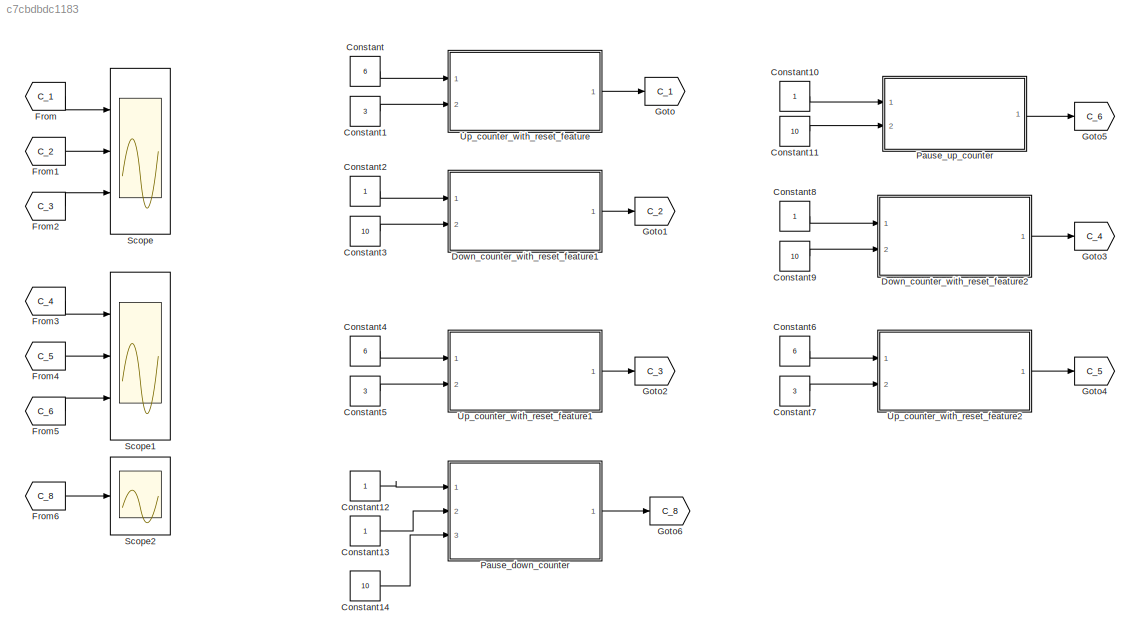
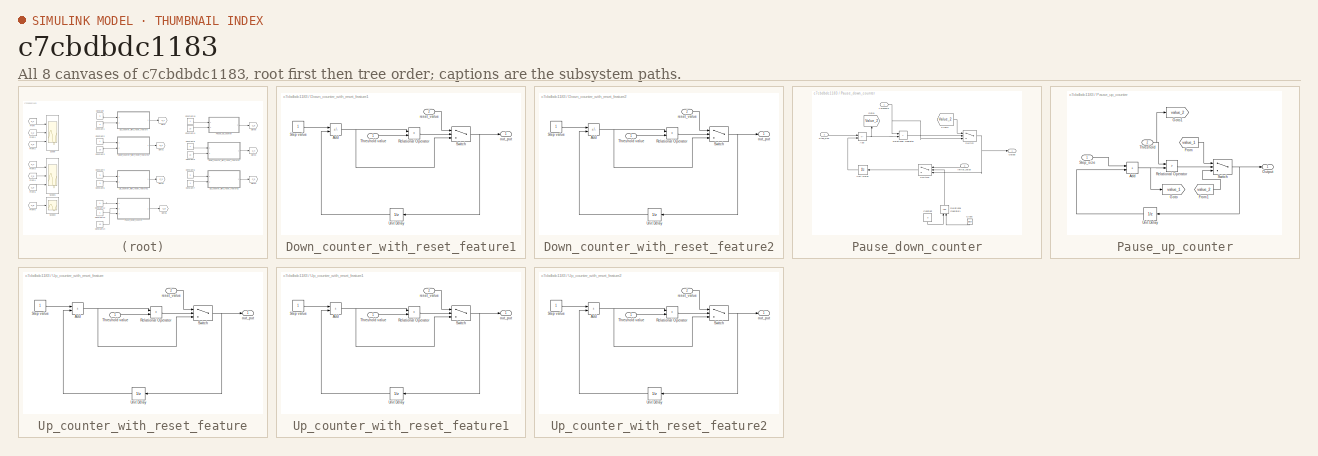
[diagram: thumbnail index - all 8 canvases of the model, root first then tree order]
MODEL slx_c7cbdbdc1183
KIND model
CONFIG AbsTol = auto
CONFIG EnableMultiTasking = off
CONFIG FixedStep = 0.5
CONFIG MaxStep = auto
CONFIG MinStep = auto
CONFIG RelTol = 1e-3
CONFIG SampleTimeConstraint = Unconstrained
CONFIG SolverName = FixedStepAuto
CONFIG StartTime = 0.0
CONFIG StopTime = 10.0
BLOCK [Constant] Constant
  Value = 6
BLOCK [Constant] Constant1
  Value = 3
BLOCK [Constant] Constant10
BLOCK [Constant] Constant11
  Value = 10
BLOCK [Constant] Constant12
BLOCK [Constant] Constant13
BLOCK [Constant] Constant14
  Value = 10
BLOCK [Constant] Constant2
BLOCK [Constant] Constant3
  Value = 10
BLOCK [Constant] Constant4
  Value = 6
BLOCK [Constant] Constant5
  Value = 3
BLOCK [Constant] Constant6
  Value = 6
BLOCK [Constant] Constant7
  Value = 3
BLOCK [Constant] Constant8
BLOCK [Constant] Constant9
  Value = 10
BLOCK [SubSystem] Down_counter_with_reset_feature1
  Ports = [2, 1]
  RequestExecContextInheritance = off
BLOCK [Sum] Down_counter_with_reset_feature1/Add
  IconShape = rectangular
  Inputs = -+
  Ports = [2, 1]
BLOCK [RelationalOperator] Down_counter_with_reset_feature1/Relational Operator
  InputSameDT = off
  Operator = <
  OutDataTypeStr = boolean
  Ports = [2, 1]
  RndMeth = Simplest
BLOCK [Constant] Down_counter_with_reset_feature1/Step value
BLOCK [Switch] Down_counter_with_reset_feature1/Switch
  Criteria = u2 > Threshold
  InputSameDT = off
  SaturateOnIntegerOverflow = off
BLOCK [Inport] Down_counter_with_reset_feature1/Threshold value
BLOCK [UnitDelay] Down_counter_with_reset_feature1/Unit Delay
  HasFrameUpgradeWarning = on
  NameLocation = top
  SampleTime = -1
BLOCK [Outport] Down_counter_with_reset_feature1/out_put
BLOCK [Inport] Down_counter_with_reset_feature1/reset_value
  Port = 2
BLOCK [SubSystem] Down_counter_with_reset_feature2
  Ports = [2, 1]
  Priority = 2
  RequestExecContextInheritance = off
BLOCK [Sum] Down_counter_with_reset_feature2/Add
  IconShape = rectangular
  Inputs = -+
  Ports = [2, 1]
BLOCK [RelationalOperator] Down_counter_with_reset_feature2/Relational Operator
  InputSameDT = off
  Operator = <
  OutDataTypeStr = boolean
  Ports = [2, 1]
  RndMeth = Simplest
BLOCK [Constant] Down_counter_with_reset_feature2/Step value
BLOCK [Switch] Down_counter_with_reset_feature2/Switch
  Criteria = u2 > Threshold
  InputSameDT = off
  SaturateOnIntegerOverflow = off
BLOCK [Inport] Down_counter_with_reset_feature2/Threshold value
BLOCK [UnitDelay] Down_counter_with_reset_feature2/Unit Delay
  HasFrameUpgradeWarning = on
  NameLocation = top
  SampleTime = -1
BLOCK [Outport] Down_counter_with_reset_feature2/out_put
BLOCK [Inport] Down_counter_with_reset_feature2/reset_value
  Port = 2
BLOCK [From] From
  GotoTag = C_1
BLOCK [From] From1
  GotoTag = C_2
BLOCK [From] From2
  GotoTag = C_3
BLOCK [From] From3
  GotoTag = C_4
BLOCK [From] From4
  GotoTag = C_5
BLOCK [From] From5
  GotoTag = C_6
BLOCK [From] From6
  GotoTag = C_8
BLOCK [Goto] Goto
  GotoTag = C_1
BLOCK [Goto] Goto1
  GotoTag = C_2
BLOCK [Goto] Goto2
  GotoTag = C_3
BLOCK [Goto] Goto3
  GotoTag = C_4
BLOCK [Goto] Goto4
  GotoTag = C_5
BLOCK [Goto] Goto5
  GotoTag = C_6
BLOCK [Goto] Goto6
  GotoTag = C_8
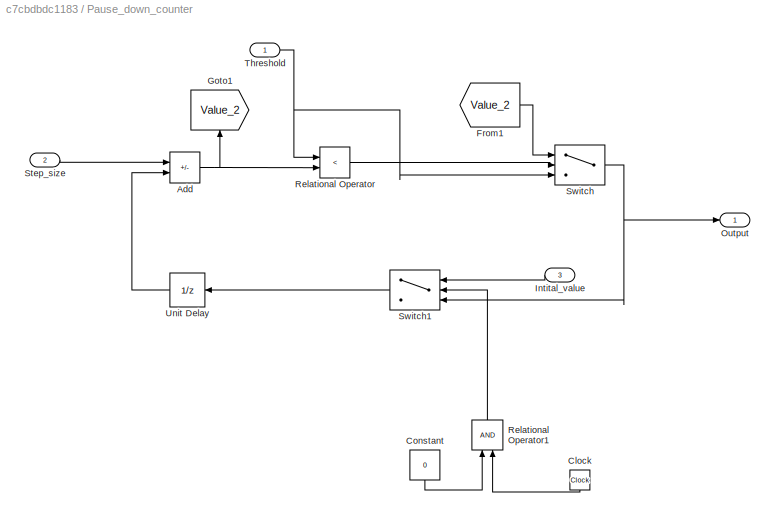
BLOCK [SubSystem] Pause_down_counter
  Ports = [3, 1]
  RequestExecContextInheritance = off
BLOCK [Sum] Pause_down_counter/Add
  IconShape = rectangular
  Inputs = -+
  Ports = [2, 1]
BLOCK [Clock] Pause_down_counter/Clock
  NameLocation = left
BLOCK [Constant] Pause_down_counter/Constant
  NameLocation = left
  Value = 0
BLOCK [From] Pause_down_counter/From1
  GotoTag = Value_2
BLOCK [Goto] Pause_down_counter/Goto1
  GotoTag = Value_2
  NameLocation = right
BLOCK [Inport] Pause_down_counter/Intital_value
  NameLocation = top
  Port = 3
BLOCK [Outport] Pause_down_counter/Output
BLOCK [RelationalOperator] Pause_down_counter/Relational Operator
  InputSameDT = off
  Operator = <
  OutDataTypeStr = boolean
  Ports = [2, 1]
  RndMeth = Simplest
BLOCK [RelationalOperator] Pause_down_counter/Relational Operator1
  InputSameDT = off
  NameLocation = right
  OutDataTypeStr = boolean
  Ports = [2, 1]
  Priority = 1
  RndMeth = Simplest
BLOCK [Inport] Pause_down_counter/Step_size
  Port = 2
BLOCK [Switch] Pause_down_counter/Switch
  Criteria = u2 > Threshold
  InputSameDT = off
  SaturateOnIntegerOverflow = off
BLOCK [Switch] Pause_down_counter/Switch1
  Criteria = u2 > Threshold
  InputSameDT = off
  NameLocation = top
  Priority = 2
  SaturateOnIntegerOverflow = off
BLOCK [Inport] Pause_down_counter/Threshold
BLOCK [UnitDelay] Pause_down_counter/Unit Delay
  HasFrameUpgradeWarning = on
  NameLocation = top
  Priority = 3
  SampleTime = -1
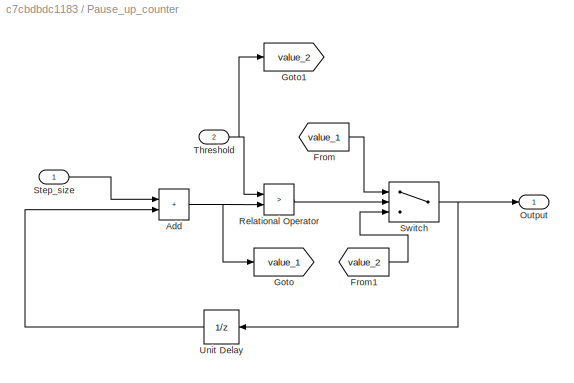
BLOCK [SubSystem] Pause_up_counter
  Ports = [2, 1]
  RequestExecContextInheritance = off
BLOCK [Sum] Pause_up_counter/Add
  IconShape = rectangular
  Ports = [2, 1]
BLOCK [From] Pause_up_counter/From
  GotoTag = value_1
BLOCK [From] Pause_up_counter/From1
  GotoTag = value_2
BLOCK [Goto] Pause_up_counter/Goto
  GotoTag = value_1
BLOCK [Goto] Pause_up_counter/Goto1
  GotoTag = value_2
BLOCK [Outport] Pause_up_counter/Output
BLOCK [RelationalOperator] Pause_up_counter/Relational Operator
  InputSameDT = off
  Operator = >
  OutDataTypeStr = boolean
  Ports = [2, 1]
  RndMeth = Simplest
BLOCK [Inport] Pause_up_counter/Step_size
BLOCK [Switch] Pause_up_counter/Switch
  Criteria = u2 > Threshold
  InputSameDT = off
  SaturateOnIntegerOverflow = off
BLOCK [Inport] Pause_up_counter/Threshold
  Port = 2
BLOCK [UnitDelay] Pause_up_counter/Unit Delay
  HasFrameUpgradeWarning = on
  NameLocation = top
  SampleTime = -1
BLOCK [Scope] Scope
  Floating = off
  NumInputPorts = 3
  Ports = [3]
  ScopeSpecificationString = Simulink.scopes.TimeScopeBlockCfg('CurrentConfiguration', extmgr.ConfigurationSet(extmgr.Configuration('Core','General UI',true),extmgr.Configuration('Core','Source UI',true),extmgr.Configuration('Sources','WiredSimulink',true),extmgr.Configuration('Visuals','Time Domain',true,'SerializedDisplays',{struct('MinYLimReal','0.375','MaxYLimReal','6.625','YLabelReal','','MinYLimMag','0.375','MaxYLimMag'...<+2688ch>
BLOCK [Scope] Scope1
  Floating = off
  NumInputPorts = 3
  Ports = [3]
  ScopeSpecificationString = Simulink.scopes.TimeScopeBlockCfg('CurrentConfiguration', extmgr.ConfigurationSet(extmgr.Configuration('Core','General UI',true),extmgr.Configuration('Core','Source UI',true),extmgr.Configuration('Sources','WiredSimulink',true,'DataLoggingVariableName','ScopeData1'),extmgr.Configuration('Visuals','Time Domain',true,'SerializedDisplays',{struct('MinYLimReal','-0.125','MaxYLimReal','11.125','YLabelR...<+2719ch>
BLOCK [Scope] Scope2
  Floating = off
  NumInputPorts = 1
  Ports = [1]
  ScopeSpecificationString = Simulink.scopes.TimeScopeBlockCfg('CurrentConfiguration', extmgr.ConfigurationSet(extmgr.Configuration('Core','General UI',true),extmgr.Configuration('Core','Source UI',true),extmgr.Configuration('Sources','WiredSimulink',true,'DataLoggingVariableName','ScopeData2'),extmgr.Configuration('Visuals','Time Domain',true,'SerializedDisplays',{struct('MinYLimReal','0.00000','MaxYLimReal','10.00000','YLab...<+1481ch>
BLOCK [SubSystem] Up_counter_with_reset_feature
  Ports = [2, 1]
  RequestExecContextInheritance = off
BLOCK [Sum] Up_counter_with_reset_feature/Add
  IconShape = rectangular
  Ports = [2, 1]
BLOCK [RelationalOperator] Up_counter_with_reset_feature/Relational Operator
  InputSameDT = off
  Operator = >
  OutDataTypeStr = boolean
  Ports = [2, 1]
  RndMeth = Simplest
BLOCK [Constant] Up_counter_with_reset_feature/Step value
BLOCK [Switch] Up_counter_with_reset_feature/Switch
  Criteria = u2 > Threshold
  InputSameDT = off
  SaturateOnIntegerOverflow = off
BLOCK [Inport] Up_counter_with_reset_feature/Threshold value
BLOCK [UnitDelay] Up_counter_with_reset_feature/Unit Delay
  HasFrameUpgradeWarning = on
  NameLocation = top
  SampleTime = -1
BLOCK [Outport] Up_counter_with_reset_feature/out_put
BLOCK [Inport] Up_counter_with_reset_feature/reset_value
  Port = 2
BLOCK [SubSystem] Up_counter_with_reset_feature1
  Ports = [2, 1]
  RequestExecContextInheritance = off
BLOCK [Sum] Up_counter_with_reset_feature1/Add
  IconShape = rectangular
  Ports = [2, 1]
BLOCK [RelationalOperator] Up_counter_with_reset_feature1/Relational Operator
  InputSameDT = off
  Operator = >
  OutDataTypeStr = boolean
  Ports = [2, 1]
  RndMeth = Simplest
BLOCK [Constant] Up_counter_with_reset_feature1/Step value
BLOCK [Switch] Up_counter_with_reset_feature1/Switch
  Criteria = u2 > Threshold
  InputSameDT = off
  SaturateOnIntegerOverflow = off
BLOCK [Inport] Up_counter_with_reset_feature1/Threshold value
BLOCK [UnitDelay] Up_counter_with_reset_feature1/Unit Delay
  HasFrameUpgradeWarning = on
  NameLocation = top
  SampleTime = -1
BLOCK [Outport] Up_counter_with_reset_feature1/out_put
BLOCK [Inport] Up_counter_with_reset_feature1/reset_value
  Port = 2
BLOCK [SubSystem] Up_counter_with_reset_feature2
  Ports = [2, 1]
  Priority = 1
  RequestExecContextInheritance = off
BLOCK [Sum] Up_counter_with_reset_feature2/Add
  IconShape = rectangular
  Ports = [2, 1]
BLOCK [RelationalOperator] Up_counter_with_reset_feature2/Relational Operator
  InputSameDT = off
  Operator = >
  OutDataTypeStr = boolean
  Ports = [2, 1]
  RndMeth = Simplest
BLOCK [Constant] Up_counter_with_reset_feature2/Step value
BLOCK [Switch] Up_counter_with_reset_feature2/Switch
  Criteria = u2 > Threshold
  InputSameDT = off
  SaturateOnIntegerOverflow = off
BLOCK [Inport] Up_counter_with_reset_feature2/Threshold value
BLOCK [UnitDelay] Up_counter_with_reset_feature2/Unit Delay
  HasFrameUpgradeWarning = on
  NameLocation = top
  SampleTime = -1
BLOCK [Outport] Up_counter_with_reset_feature2/out_put
BLOCK [Inport] Up_counter_with_reset_feature2/reset_value
  Port = 2
LINE Constant10:1 -> Pause_up_counter:1
LINE Constant11:1 -> Pause_up_counter:2
LINE Constant12:1 -> Pause_down_counter:1
LINE Constant13:1 -> Pause_down_counter:2
LINE Constant14:1 -> Pause_down_counter:3
LINE Constant1:1 -> Up_counter_with_reset_feature:2
LINE Constant2:1 -> Down_counter_with_reset_feature1:1
LINE Constant3:1 -> Down_counter_with_reset_feature1:2
LINE Constant4:1 -> Up_counter_with_reset_feature1:1
LINE Constant5:1 -> Up_counter_with_reset_feature1:2
LINE Constant6:1 -> Up_counter_with_reset_feature2:1
LINE Constant7:1 -> Up_counter_with_reset_feature2:2
LINE Constant8:1 -> Down_counter_with_reset_feature2:1
LINE Constant9:1 -> Down_counter_with_reset_feature2:2
LINE Constant:1 -> Up_counter_with_reset_feature:1
NET Down_counter_with_reset_feature1/Add:1 -> Down_counter_with_reset_feature1/Relational Operator:1, Down_counter_with_reset_feature1/Switch:3
LINE Down_counter_with_reset_feature1/Relational Operator:1 -> Down_counter_with_reset_feature1/Switch:2
LINE Down_counter_with_reset_feature1/Step value:1 -> Down_counter_with_reset_feature1/Add:1
NET Down_counter_with_reset_feature1/Switch:1 -> Down_counter_with_reset_feature1/Unit Delay:1, Down_counter_with_reset_feature1/out_put:1
LINE Down_counter_with_reset_feature1/Threshold value:1 -> Down_counter_with_reset_feature1/Relational Operator:2
LINE Down_counter_with_reset_feature1/Unit Delay:1 -> Down_counter_with_reset_feature1/Add:2
LINE Down_counter_with_reset_feature1/reset_value:1 -> Down_counter_with_reset_feature1/Switch:1
LINE Down_counter_with_reset_feature1:1 -> Goto1:1
NET Down_counter_with_reset_feature2/Add:1 -> Down_counter_with_reset_feature2/Relational Operator:1, Down_counter_with_reset_feature2/Switch:3
LINE Down_counter_with_reset_feature2/Relational Operator:1 -> Down_counter_with_reset_feature2/Switch:2
LINE Down_counter_with_reset_feature2/Step value:1 -> Down_counter_with_reset_feature2/Add:1
NET Down_counter_with_reset_feature2/Switch:1 -> Down_counter_with_reset_feature2/Unit Delay:1, Down_counter_with_reset_feature2/out_put:1
LINE Down_counter_with_reset_feature2/Threshold value:1 -> Down_counter_with_reset_feature2/Relational Operator:2
LINE Down_counter_with_reset_feature2/Unit Delay:1 -> Down_counter_with_reset_feature2/Add:2
LINE Down_counter_with_reset_feature2/reset_value:1 -> Down_counter_with_reset_feature2/Switch:1
LINE Down_counter_with_reset_feature2:1 -> Goto3:1
LINE From1:1 -> Scope:2
LINE From2:1 -> Scope:3
LINE From3:1 -> Scope1:1
LINE From4:1 -> Scope1:2
LINE From5:1 -> Scope1:3
LINE From6:1 -> Scope2:1
LINE From:1 -> Scope:1
NET Pause_down_counter/Add:1 -> Pause_down_counter/Goto1:1, Pause_down_counter/Relational Operator:2
LINE Pause_down_counter/Clock:1 -> Pause_down_counter/Relational Operator1:2
LINE Pause_down_counter/Constant:1 -> Pause_down_counter/Relational Operator1:1
LINE Pause_down_counter/From1:1 -> Pause_down_counter/Switch:1
LINE Pause_down_counter/Intital_value:1 -> Pause_down_counter/Switch1:1
LINE Pause_down_counter/Relational Operator1:1 -> Pause_down_counter/Switch1:2
LINE Pause_down_counter/Relational Operator:1 -> Pause_down_counter/Switch:2
LINE Pause_down_counter/Step_size:1 -> Pause_down_counter/Add:1
LINE Pause_down_counter/Switch1:1 -> Pause_down_counter/Unit Delay:1
NET Pause_down_counter/Switch:1 -> Pause_down_counter/Output:1, Pause_down_counter/Switch1:3
NET Pause_down_counter/Threshold:1 -> Pause_down_counter/Relational Operator:1, Pause_down_counter/Switch:3
LINE Pause_down_counter/Unit Delay:1 -> Pause_down_counter/Add:2
LINE Pause_down_counter:1 -> Goto6:1
NET Pause_up_counter/Add:1 -> Pause_up_counter/Goto:1, Pause_up_counter/Relational Operator:2
LINE Pause_up_counter/From1:1 -> Pause_up_counter/Switch:3
LINE Pause_up_counter/From:1 -> Pause_up_counter/Switch:1
LINE Pause_up_counter/Relational Operator:1 -> Pause_up_counter/Switch:2
LINE Pause_up_counter/Step_size:1 -> Pause_up_counter/Add:1
NET Pause_up_counter/Switch:1 -> Pause_up_counter/Output:1, Pause_up_counter/Unit Delay:1
NET Pause_up_counter/Threshold:1 -> Pause_up_counter/Goto1:1, Pause_up_counter/Relational Operator:1
LINE Pause_up_counter/Unit Delay:1 -> Pause_up_counter/Add:2
LINE Pause_up_counter:1 -> Goto5:1
NET Up_counter_with_reset_feature/Add:1 -> Up_counter_with_reset_feature/Relational Operator:1, Up_counter_with_reset_feature/Switch:3
LINE Up_counter_with_reset_feature/Relational Operator:1 -> Up_counter_with_reset_feature/Switch:2
LINE Up_counter_with_reset_feature/Step value:1 -> Up_counter_with_reset_feature/Add:1
NET Up_counter_with_reset_feature/Switch:1 -> Up_counter_with_reset_feature/Unit Delay:1, Up_counter_with_reset_feature/out_put:1
LINE Up_counter_with_reset_feature/Threshold value:1 -> Up_counter_with_reset_feature/Relational Operator:2
LINE Up_counter_with_reset_feature/Unit Delay:1 -> Up_counter_with_reset_feature/Add:2
LINE Up_counter_with_reset_feature/reset_value:1 -> Up_counter_with_reset_feature/Switch:1
NET Up_counter_with_reset_feature1/Add:1 -> Up_counter_with_reset_feature1/Relational Operator:1, Up_counter_with_reset_feature1/Switch:3
LINE Up_counter_with_reset_feature1/Relational Operator:1 -> Up_counter_with_reset_feature1/Switch:2
LINE Up_counter_with_reset_feature1/Step value:1 -> Up_counter_with_reset_feature1/Add:1
NET Up_counter_with_reset_feature1/Switch:1 -> Up_counter_with_reset_feature1/Unit Delay:1, Up_counter_with_reset_feature1/out_put:1
LINE Up_counter_with_reset_feature1/Threshold value:1 -> Up_counter_with_reset_feature1/Relational Operator:2
LINE Up_counter_with_reset_feature1/Unit Delay:1 -> Up_counter_with_reset_feature1/Add:2
LINE Up_counter_with_reset_feature1/reset_value:1 -> Up_counter_with_reset_feature1/Switch:1
LINE Up_counter_with_reset_feature1:1 -> Goto2:1
NET Up_counter_with_reset_feature2/Add:1 -> Up_counter_with_reset_feature2/Relational Operator:1, Up_counter_with_reset_feature2/Switch:3
LINE Up_counter_with_reset_feature2/Relational Operator:1 -> Up_counter_with_reset_feature2/Switch:2
LINE Up_counter_with_reset_feature2/Step value:1 -> Up_counter_with_reset_feature2/Add:1
NET Up_counter_with_reset_feature2/Switch:1 -> Up_counter_with_reset_feature2/Unit Delay:1, Up_counter_with_reset_feature2/out_put:1
LINE Up_counter_with_reset_feature2/Threshold value:1 -> Up_counter_with_reset_feature2/Relational Operator:2
LINE Up_counter_with_reset_feature2/Unit Delay:1 -> Up_counter_with_reset_feature2/Add:2
LINE Up_counter_with_reset_feature2/reset_value:1 -> Up_counter_with_reset_feature2/Switch:1
LINE Up_counter_with_reset_feature2:1 -> Goto4:1
LINE Up_counter_with_reset_feature:1 -> Goto:1
note: NET lines group one-source signal fan-out (src -> all destinations, sorted); 1:1 wires keep LINE
